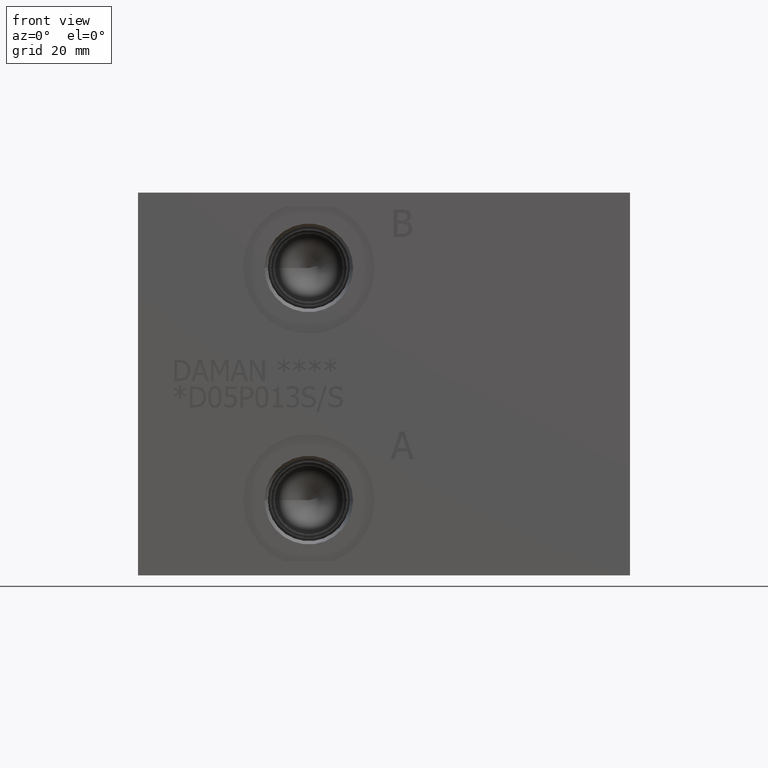
[diagram: clean part render]
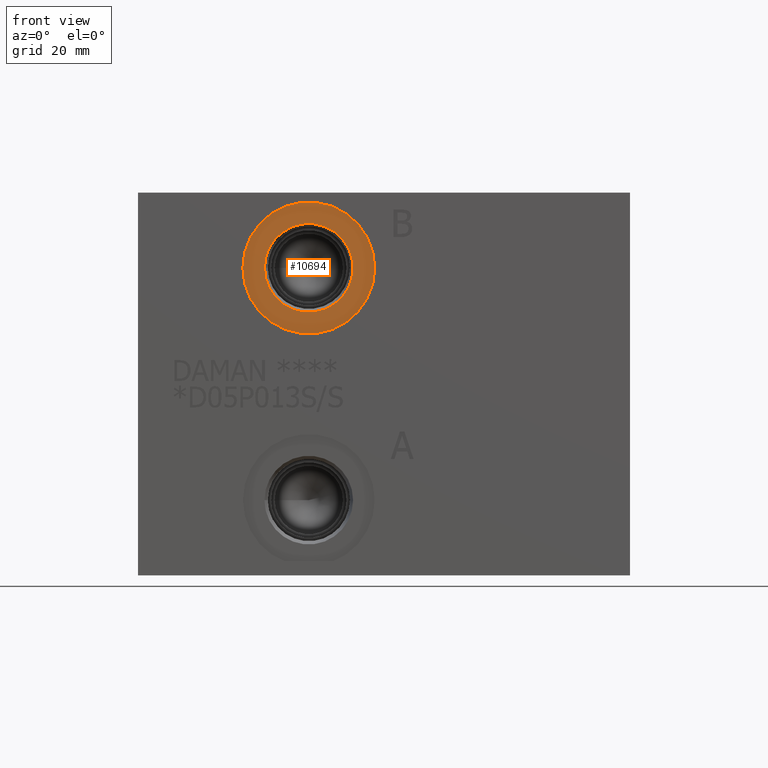
[diagram: same view with one face highlighted and labeled with its STEP entity id]
A machine part, front view. The second image highlights one B-rep face of the part: STEP entity #10694.
In plain terms, the highlighted planar face has unit normal (0, 1, 0).
Its self-contained STEP definition (entity closure, byte-faithful):
#249=CIRCLE('',#11254,15.3162);
#250=CIRCLE('',#11255,15.3162);
#251=CIRCLE('',#11257,10.2997);
#252=CIRCLE('',#11258,10.2997);
#381=FACE_BOUND('',#1824,.T.);
#696=PLANE('',#11256);
#1213=FACE_OUTER_BOUND('',#1823,.T.);
#1823=EDGE_LOOP('',(#9390,#9391));
#1824=EDGE_LOOP('',(#9392,#9393));
#5086=VERTEX_POINT('',#18341);
#5087=VERTEX_POINT('',#18343);
#5088=VERTEX_POINT('',#18347);
#5089=VERTEX_POINT('',#18348);
#6551=EDGE_CURVE('',#5086,#5087,#249,.T.);
#6552=EDGE_CURVE('',#5087,#5086,#250,.T.);
#6553=EDGE_CURVE('',#5088,#5089,#251,.T.);
#6554=EDGE_CURVE('',#5089,#5088,#252,.T.);
#9390=ORIENTED_EDGE('',*,*,#6552,.F.);
#9391=ORIENTED_EDGE('',*,*,#6551,.F.);
#9392=ORIENTED_EDGE('',*,*,#6553,.T.);
#9393=ORIENTED_EDGE('',*,*,#6554,.T.);
#10694=ADVANCED_FACE('',(#1213,#381),#696,.F.);
#11254=AXIS2_PLACEMENT_3D('',#18344,#13327,#13328);
#11255=AXIS2_PLACEMENT_3D('',#18345,#13329,#13330);
#11256=AXIS2_PLACEMENT_3D('',#18346,#13331,#13332);
#11257=AXIS2_PLACEMENT_3D('',#18349,#13333,#13334);
#11258=AXIS2_PLACEMENT_3D('',#18350,#13335,#13336);
#13327=DIRECTION('center_axis',(0.,1.,0.));
#13328=DIRECTION('ref_axis',(1.,0.,0.));
#13329=DIRECTION('center_axis',(0.,1.,0.));
#13330=DIRECTION('ref_axis',(1.,0.,0.));
#13331=DIRECTION('center_axis',(0.,1.,0.));
#13332=DIRECTION('ref_axis',(0.,0.,1.));
#13333=DIRECTION('center_axis',(0.,1.,0.));
#13334=DIRECTION('ref_axis',(1.,0.,0.));
#13335=DIRECTION('center_axis',(0.,1.,0.));
#13336=DIRECTION('ref_axis',(1.,0.,0.));
#18341=CARTESIAN_POINT('',(24.3586,0.7874,71.4248));
#18343=CARTESIAN_POINT('',(54.991,0.7874,71.4248));
#18344=CARTESIAN_POINT('Origin',(39.6748,0.7874,71.4248));
#18345=CARTESIAN_POINT('Origin',(39.6748,0.7874,71.4248));
#18346=CARTESIAN_POINT('Origin',(49.9745,0.7874,71.4248));
#18347=CARTESIAN_POINT('',(49.9745,0.7874,71.4248));
#18348=CARTESIAN_POINT('',(29.3751,0.787400000000001,71.4248));
#18349=CARTESIAN_POINT('Origin',(39.6748,0.7874,71.4248));
#18350=CARTESIAN_POINT('Origin',(39.6748,0.7874,71.4248));